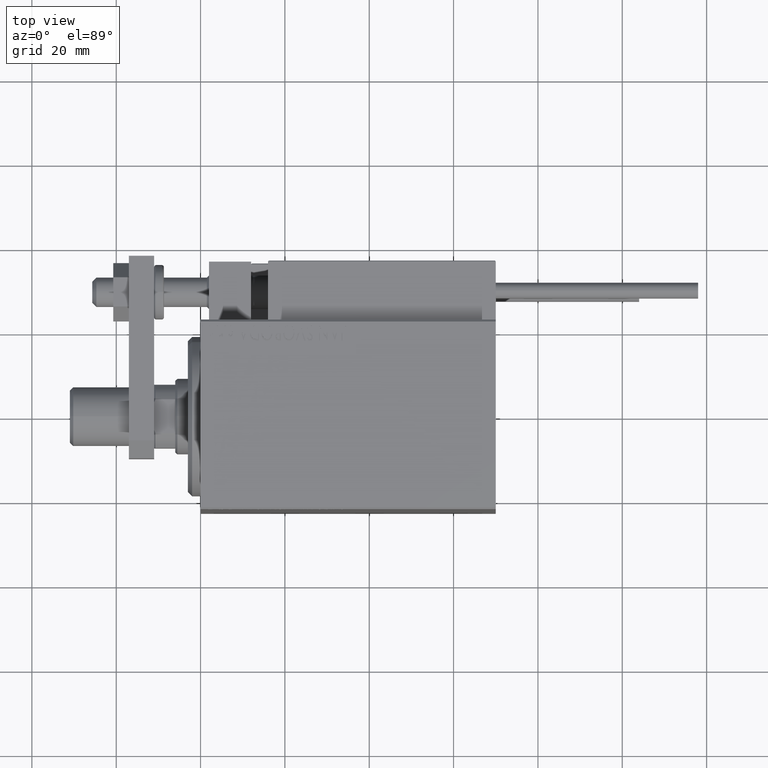
[diagram: clean part render]
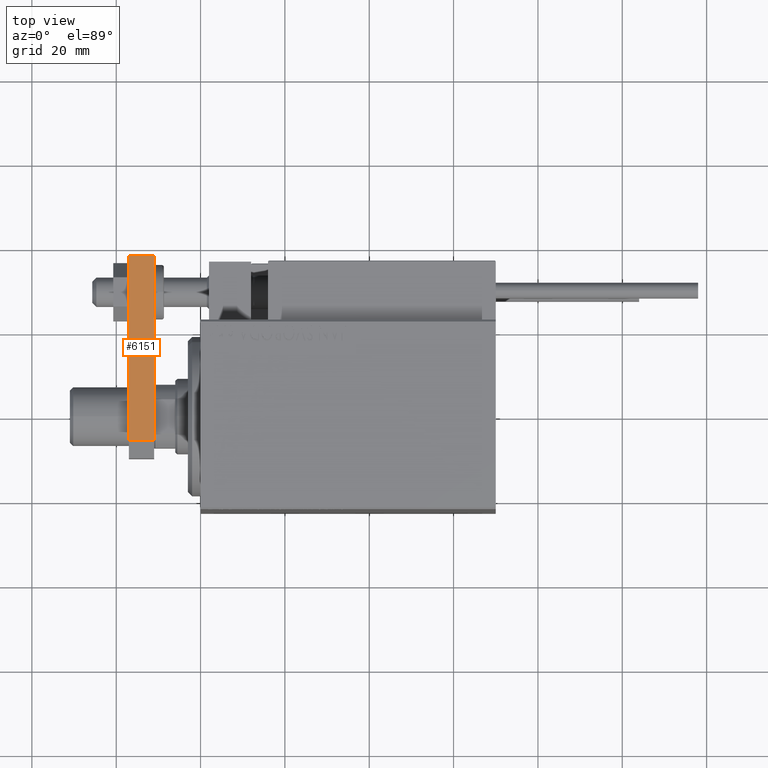
[diagram: same view with one face highlighted and labeled with its STEP entity id]
A machine part, top view. The second image highlights one B-rep face of the part: STEP entity #6151.
In plain terms, the highlighted planar face has unit normal (-0, -0, -1).
Its self-contained STEP definition (entity closure, byte-faithful):
#340 = EDGE_CURVE ( 'NONE', #47667, #6737, #36260, .T. ) ;
#2520 = CARTESIAN_POINT ( 'NONE',  ( 10.00000000000000533, 4.239999999999986890, 6.000000000000000000 ) ) ;
#3020 = LINE ( 'NONE', #2520, #47386 ) ;
#4312 = EDGE_CURVE ( 'NONE', #6737, #37606, #11976, .T. ) ;
#6126 = VECTOR ( 'NONE', #23804, 1000.000000000000000 ) ;
#6151 = ADVANCED_FACE ( 'NONE', ( #28692 ), #21219, .F. ) ;
#6737 = VERTEX_POINT ( 'NONE', #35549 ) ;
#8111 = CARTESIAN_POINT ( 'NONE',  ( 10.00000000000000178, 48.00000000000000000, 6.000000000000000000 ) ) ;
#8259 = ORIENTED_EDGE ( 'NONE', *, *, #10041, .T. ) ;
#9351 = ORIENTED_EDGE ( 'NONE', *, *, #34844, .T. ) ;
#9628 = DIRECTION ( 'NONE',  ( -1.000000000000000000, -7.228014483236695816E-17, 0.000000000000000000 ) ) ;
#10041 = EDGE_CURVE ( 'NONE', #47667, #26304, #3020, .T. ) ;
#11976 = LINE ( 'NONE', #8111, #6126 ) ;
#15375 = DIRECTION ( 'NONE',  ( 0.000000000000000000, 0.000000000000000000, -1.000000000000000000 ) ) ;
#19108 = CARTESIAN_POINT ( 'NONE',  ( 10.00000000000000533, 4.239999999999986890, 6.000000000000000000 ) ) ;
#20172 = AXIS2_PLACEMENT_3D ( 'NONE', #40249, #9628, #25339 ) ;
#21219 = PLANE ( 'NONE',  #20172 ) ;
#21626 = VECTOR ( 'NONE', #25200, 1000.000000000000000 ) ;
#22703 = CARTESIAN_POINT ( 'NONE',  ( 10.00000000000000533, 4.239999999999986890, 0.000000000000000000 ) ) ;
#23804 = DIRECTION ( 'NONE',  ( -0.000000000000000000, -0.000000000000000000, -1.000000000000000000 ) ) ;
#25200 = DIRECTION ( 'NONE',  ( -7.228014483236695816E-17, 1.000000000000000000, 0.000000000000000000 ) ) ;
#25339 = DIRECTION ( 'NONE',  ( 7.228014483236695816E-17, -1.000000000000000000, 0.000000000000000000 ) ) ;
#26304 = VERTEX_POINT ( 'NONE', #22703 ) ;
#27196 = LINE ( 'NONE', #46437, #37680 ) ;
#28692 = FACE_OUTER_BOUND ( 'NONE', #31104, .T. ) ;
#28802 = CARTESIAN_POINT ( 'NONE',  ( 10.00000000000000533, 0.000000000000000000, 6.000000000000000000 ) ) ;
#29173 = ORIENTED_EDGE ( 'NONE', *, *, #340, .F. ) ;
#29590 = CARTESIAN_POINT ( 'NONE',  ( 10.00000000000000178, 48.00000000000000000, 0.000000000000000000 ) ) ;
#31104 = EDGE_LOOP ( 'NONE', ( #29173, #8259, #9351, #32788 ) ) ;
#32788 = ORIENTED_EDGE ( 'NONE', *, *, #4312, .F. ) ;
#34844 = EDGE_CURVE ( 'NONE', #26304, #37606, #27196, .T. ) ;
#35549 = CARTESIAN_POINT ( 'NONE',  ( 10.00000000000000178, 48.00000000000000000, 6.000000000000000000 ) ) ;
#36260 = LINE ( 'NONE', #28802, #21626 ) ;
#37606 = VERTEX_POINT ( 'NONE', #29590 ) ;
#37680 = VECTOR ( 'NONE', #43109, 1000.000000000000000 ) ;
#40249 = CARTESIAN_POINT ( 'NONE',  ( 10.00000000000000533, 0.000000000000000000, 6.000000000000000000 ) ) ;
#43109 = DIRECTION ( 'NONE',  ( -7.228014483236695816E-17, 1.000000000000000000, 0.000000000000000000 ) ) ;
#46437 = CARTESIAN_POINT ( 'NONE',  ( 10.00000000000000533, 0.000000000000000000, 0.000000000000000000 ) ) ;
#47386 = VECTOR ( 'NONE', #15375, 1000.000000000000000 ) ;
#47667 = VERTEX_POINT ( 'NONE', #19108 ) ;